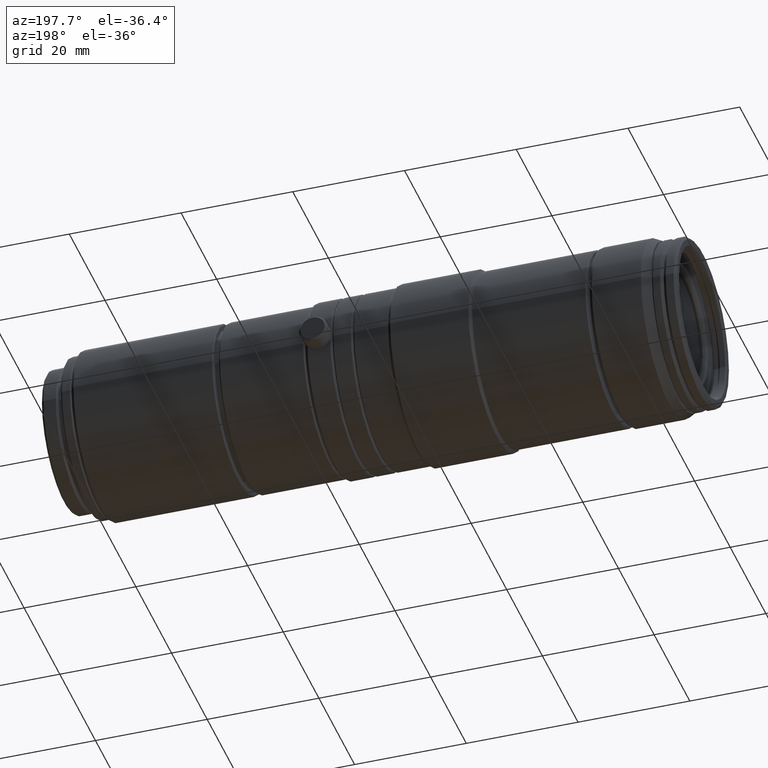
[diagram: clean part render]
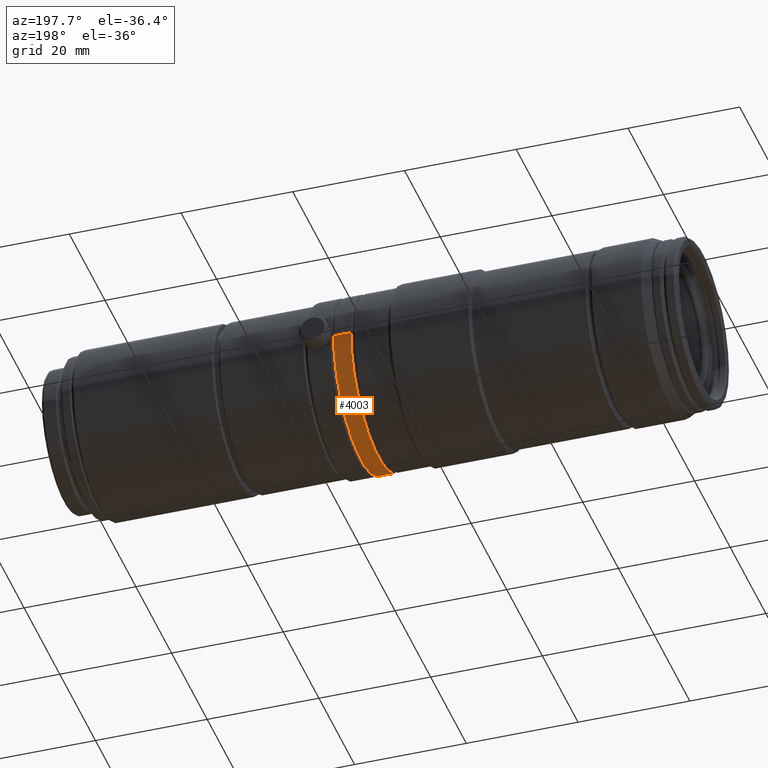
[diagram: same view with one face highlighted and labeled with its STEP entity id]
A machine part, auxiliary view. The second image highlights one B-rep face of the part: STEP entity #4003.
In plain terms, the highlighted cylindrical surface (partial cylindrical patch) has radius 15.4998 mm, axis along (1, -0, -0).
Its self-contained STEP definition (entity closure, byte-faithful):
#38 = DIRECTION ( 'NONE',  ( 0.0000000000000000000, 1.000000000000000000, 0.0000000000000000000 ) ) ;
#55 = EDGE_CURVE ( 'NONE', #346, #1188, #872, .T. ) ;
#146 = CARTESIAN_POINT ( 'NONE',  ( -8.612003947942944604E-16, -15.49983351145345090, 1.898182149711835047E-15 ) ) ;
#272 = EDGE_LOOP ( 'NONE', ( #4426, #357, #415, #3146 ) ) ;
#294 = AXIS2_PLACEMENT_3D ( 'NONE', #4153, #4433, #4107 ) ;
#346 = VERTEX_POINT ( 'NONE', #2779 ) ;
#357 = ORIENTED_EDGE ( 'NONE', *, *, #4292, .T. ) ;
#377 = DIRECTION ( 'NONE',  ( 1.000000000000000000, -5.556191259460425289E-17, -0.0000000000000000000 ) ) ;
#415 = ORIENTED_EDGE ( 'NONE', *, *, #3761, .T. ) ;
#696 = VERTEX_POINT ( 'NONE', #4050 ) ;
#872 = LINE ( 'NONE', #146, #4234 ) ;
#948 = CARTESIAN_POINT ( 'NONE',  ( 8.612003947942944604E-16, 15.49983351145345090, 0.0000000000000000000 ) ) ;
#1188 = VERTEX_POINT ( 'NONE', #4311 ) ;
#1347 = EDGE_CURVE ( 'NONE', #1188, #696, #3940, .T. ) ;
#1443 = FACE_OUTER_BOUND ( 'NONE', #272, .T. ) ;
#1647 = VECTOR ( 'NONE', #3742, 1000.000000000000000 ) ;
#1957 = AXIS2_PLACEMENT_3D ( 'NONE', #3091, #3184, #38 ) ;
#2213 = DIRECTION ( 'NONE',  ( 1.000000000000000000, -5.556191259460425289E-17, -0.0000000000000000000 ) ) ;
#2431 = DIRECTION ( 'NONE',  ( 5.556191259460425289E-17, 1.000000000000000000, 0.0000000000000000000 ) ) ;
#2531 = CARTESIAN_POINT ( 'NONE',  ( 0.0000000000000000000, 0.0000000000000000000, 0.0000000000000000000 ) ) ;
#2629 = CIRCLE ( 'NONE', #294, 15.49983351145343669 ) ;
#2779 = CARTESIAN_POINT ( 'NONE',  ( -69.80000037005257241, -15.49983351145343313, 1.898182149711834258E-15 ) ) ;
#3091 = CARTESIAN_POINT ( 'NONE',  ( -66.70000037005249283, 3.705979590620928587E-15, 0.0000000000000000000 ) ) ;
#3146 = ORIENTED_EDGE ( 'NONE', *, *, #1347, .F. ) ;
#3184 = DIRECTION ( 'NONE',  ( 1.000000000000000000, -5.556191259460425289E-17, -0.0000000000000000000 ) ) ;
#3226 = CYLINDRICAL_SURFACE ( 'NONE', #3299, 15.49983351145345090 ) ;
#3290 = VERTEX_POINT ( 'NONE', #4389 ) ;
#3299 = AXIS2_PLACEMENT_3D ( 'NONE', #2531, #377, #2431 ) ;
#3742 = DIRECTION ( 'NONE',  ( 1.000000000000000000, -5.556191259460425289E-17, -0.0000000000000000000 ) ) ;
#3761 = EDGE_CURVE ( 'NONE', #3290, #696, #4081, .T. ) ;
#3940 = CIRCLE ( 'NONE', #1957, 15.49983351145346333 ) ;
#4003 = ADVANCED_FACE ( 'NONE', ( #1443 ), #3226, .T. ) ;
#4050 = CARTESIAN_POINT ( 'NONE',  ( -66.70000037005249283, 15.49983351145346688, 1.898182149711836230E-15 ) ) ;
#4081 = LINE ( 'NONE', #948, #1647 ) ;
#4107 = DIRECTION ( 'NONE',  ( 0.0000000000000000000, 1.000000000000000000, 0.0000000000000000000 ) ) ;
#4153 = CARTESIAN_POINT ( 'NONE',  ( -69.80000037005257241, 3.878221519664205439E-15, 0.0000000000000000000 ) ) ;
#4234 = VECTOR ( 'NONE', #2213, 1000.000000000000000 ) ;
#4292 = EDGE_CURVE ( 'NONE', #346, #3290, #2629, .T. ) ;
#4311 = CARTESIAN_POINT ( 'NONE',  ( -66.70000037005249283, -15.49983351145345978, 0.0000000000000000000 ) ) ;
#4389 = CARTESIAN_POINT ( 'NONE',  ( -69.80000037005257241, 15.49983351145344024, 0.0000000000000000000 ) ) ;
#4426 = ORIENTED_EDGE ( 'NONE', *, *, #55, .F. ) ;
#4433 = DIRECTION ( 'NONE',  ( 1.000000000000000000, -5.556191259460425289E-17, -0.0000000000000000000 ) ) ;